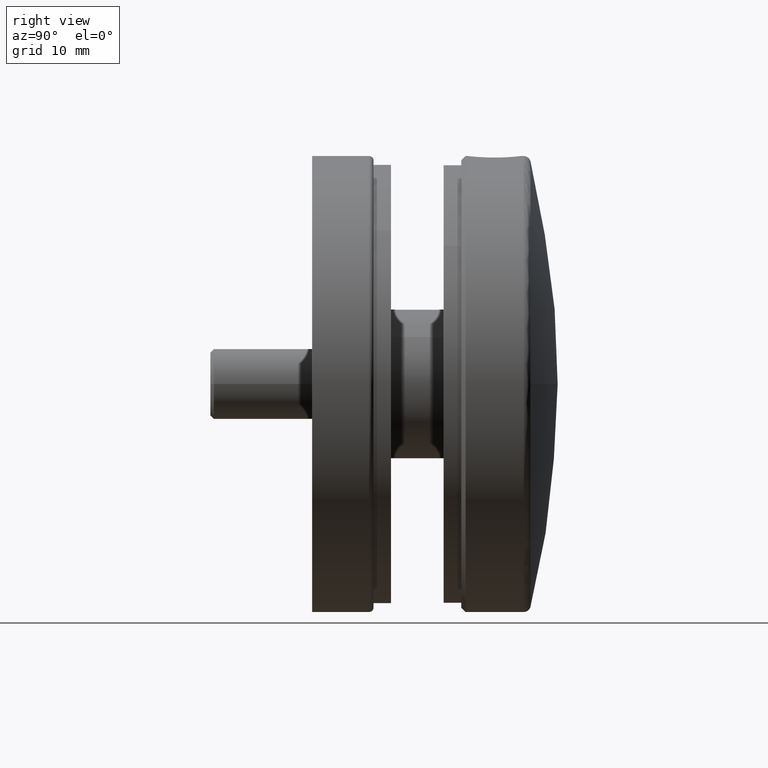
[diagram: clean part render]
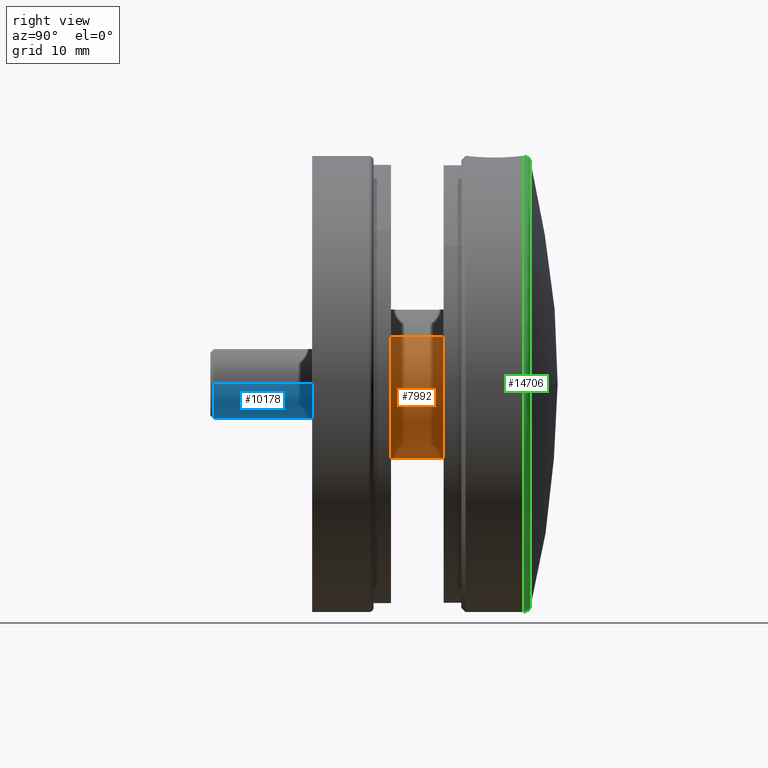
[diagram: same view with three faces highlighted in distinct colors, each labeled with its STEP entity id]
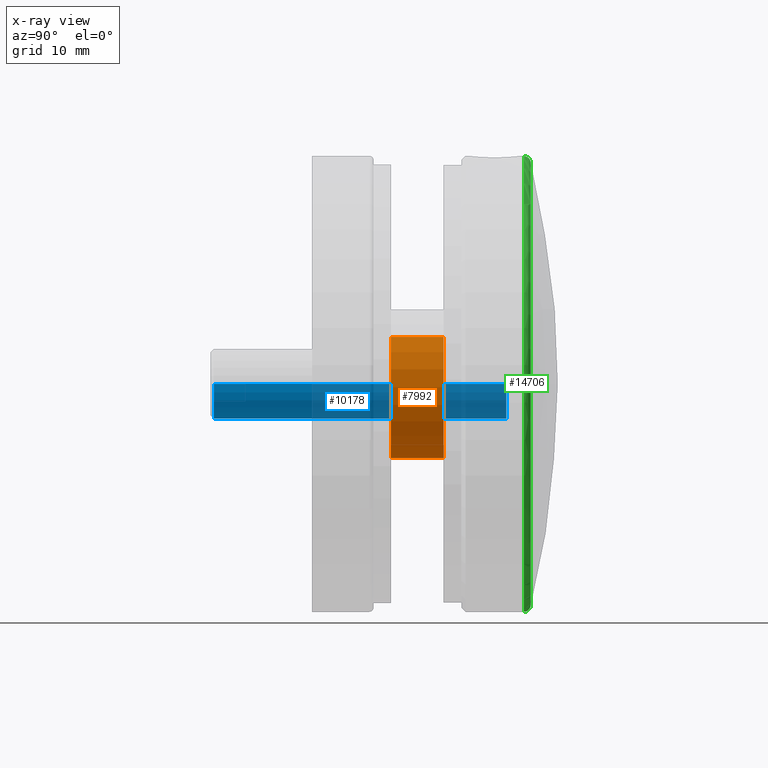
[diagram: x-ray of the same camera — body ghosted, the three highlighted faces saturated]
A machine part, right view with three faces highlighted in distinct colors.
The next image is the same camera in x-ray (body ghosted, the three faces saturated) — at least one of them is partly hidden behind the body in this view.
Their STEP definitions:

[orange] entity #7992 — the highlighted cylindrical surface (partial cylindrical patch) has radius 8.5 mm, axis along (0, 1, 0).
#12 = DIRECTION ( 'NONE',  ( 0.0000000000000000000, 0.0000000000000000000, -1.000000000000000000 ) ) ;
#76 = ORIENTED_EDGE ( 'NONE', *, *, #10896, .F. ) ;
#1007 = DIRECTION ( 'NONE',  ( 0.0000000000000000000, 1.000000000000000000, 0.0000000000000000000 ) ) ;
#1044 = VERTEX_POINT ( 'NONE', #6632 ) ;
#1069 = CARTESIAN_POINT ( 'NONE',  ( 0.0000000000000000000, 8.000000000000000000, 0.0000000000000000000 ) ) ;
#1495 = CARTESIAN_POINT ( 'NONE',  ( 0.0000000000000000000, 8.000000000000000000, -8.500000000000000000 ) ) ;
#2379 = VERTEX_POINT ( 'NONE', #14632 ) ;
#2534 = DIRECTION ( 'NONE',  ( -0.0000000000000000000, -1.000000000000000000, -0.0000000000000000000 ) ) ;
#2962 = CIRCLE ( 'NONE', #10165, 8.500000000000000000 ) ;
#3809 = EDGE_CURVE ( 'NONE', #2379, #6171, #14386, .T. ) ;
#4023 = ORIENTED_EDGE ( 'NONE', *, *, #4996, .F. ) ;
#4832 = LINE ( 'NONE', #1495, #13557 ) ;
#4996 = EDGE_CURVE ( 'NONE', #1044, #5094, #2962, .T. ) ;
#5094 = VERTEX_POINT ( 'NONE', #14796 ) ;
#5155 = CARTESIAN_POINT ( 'NONE',  ( 0.0000000000000000000, 2.000000000000000000, 0.0000000000000000000 ) ) ;
#5250 = LINE ( 'NONE', #5963, #12172 ) ;
#5963 = CARTESIAN_POINT ( 'NONE',  ( 1.040949779275250100E-015, 8.000000000000000000, 8.500000000000000000 ) ) ;
#6171 = VERTEX_POINT ( 'NONE', #8765 ) ;
#6632 = CARTESIAN_POINT ( 'NONE',  ( 1.040949779275250100E-015, 8.000000000000000000, 8.500000000000000000 ) ) ;
#7414 = DIRECTION ( 'NONE',  ( 0.0000000000000000000, 1.000000000000000000, 0.0000000000000000000 ) ) ;
#7420 = ORIENTED_EDGE ( 'NONE', *, *, #7903, .T. ) ;
#7903 = EDGE_CURVE ( 'NONE', #1044, #2379, #5250, .T. ) ;
#7992 = ADVANCED_FACE ( 'NONE', ( #12364 ), #14150, .T. ) ;
#8073 = DIRECTION ( 'NONE',  ( -0.0000000000000000000, -1.000000000000000000, -0.0000000000000000000 ) ) ;
#8714 = AXIS2_PLACEMENT_3D ( 'NONE', #5155, #7414, #8876 ) ;
#8765 = CARTESIAN_POINT ( 'NONE',  ( 0.0000000000000000000, 2.000000000000000000, -8.500000000000000000 ) ) ;
#8841 = DIRECTION ( 'NONE',  ( 0.0000000000000000000, 0.0000000000000000000, 1.000000000000000000 ) ) ;
#8876 = DIRECTION ( 'NONE',  ( 0.0000000000000000000, 0.0000000000000000000, 1.000000000000000000 ) ) ;
#8928 = AXIS2_PLACEMENT_3D ( 'NONE', #1069, #8073, #12 ) ;
#10165 = AXIS2_PLACEMENT_3D ( 'NONE', #12319, #1007, #8841 ) ;
#10896 = EDGE_CURVE ( 'NONE', #5094, #6171, #4832, .T. ) ;
#11988 = ORIENTED_EDGE ( 'NONE', *, *, #3809, .T. ) ;
#11994 = DIRECTION ( 'NONE',  ( -0.0000000000000000000, -1.000000000000000000, -0.0000000000000000000 ) ) ;
#12172 = VECTOR ( 'NONE', #2534, 1000.000000000000000 ) ;
#12319 = CARTESIAN_POINT ( 'NONE',  ( 0.0000000000000000000, 8.000000000000000000, 0.0000000000000000000 ) ) ;
#12364 = FACE_OUTER_BOUND ( 'NONE', #14602, .T. ) ;
#13557 = VECTOR ( 'NONE', #11994, 1000.000000000000000 ) ;
#14150 = CYLINDRICAL_SURFACE ( 'NONE', #8928, 8.500000000000000000 ) ;
#14386 = CIRCLE ( 'NONE', #8714, 8.500000000000000000 ) ;
#14602 = EDGE_LOOP ( 'NONE', ( #4023, #7420, #11988, #76 ) ) ;
#14632 = CARTESIAN_POINT ( 'NONE',  ( 1.040949779275250100E-015, 2.000000000000000000, 8.500000000000000000 ) ) ;
#14796 = CARTESIAN_POINT ( 'NONE',  ( 0.0000000000000000000, 8.000000000000000000, -8.500000000000000000 ) ) ;

[blue] entity #10178 — the highlighted cylindrical surface (edge-blend (fillet) strip) has radius 4 mm, axis along (0, -1, 0).
#48 = CARTESIAN_POINT ( 'NONE',  ( 0.0000000000000000000, 0.0000000000000000000, -33.75000000000000700 ) ) ;
#666 = CARTESIAN_POINT ( 'NONE',  ( -4.000000000000000000, 4.898587196589412800E-016, -0.4000000000000019700 ) ) ;
#1444 = AXIS2_PLACEMENT_3D ( 'NONE', #5676, #13632, #10207 ) ;
#1769 = CARTESIAN_POINT ( 'NONE',  ( 4.000000000000000000, 0.0000000000000000000, -0.4000000000000019700 ) ) ;
#1863 = CIRCLE ( 'NONE', #13261, 4.000000000000000000 ) ;
#3309 = CIRCLE ( 'NONE', #7684, 4.000000000000000000 ) ;
#3838 = DIRECTION ( 'NONE',  ( -0.0000000000000000000, -0.0000000000000000000, 1.000000000000000000 ) ) ;
#4315 = EDGE_CURVE ( 'NONE', #12017, #7064, #3309, .T. ) ;
#4455 = DIRECTION ( 'NONE',  ( 0.0000000000000000000, 0.0000000000000000000, -1.000000000000000000 ) ) ;
#4522 = EDGE_CURVE ( 'NONE', #6395, #7064, #11304, .T. ) ;
#4627 = VECTOR ( 'NONE', #13139, 1000.000000000000000 ) ;
#5150 = LINE ( 'NONE', #6303, #4627 ) ;
#5676 = CARTESIAN_POINT ( 'NONE',  ( 0.0000000000000000000, 0.0000000000000000000, 0.0000000000000000000 ) ) ;
#5762 = EDGE_CURVE ( 'NONE', #6395, #12865, #1863, .T. ) ;
#6267 = CYLINDRICAL_SURFACE ( 'NONE', #1444, 4.000000000000000000 ) ;
#6303 = CARTESIAN_POINT ( 'NONE',  ( 4.000000000000000000, 0.0000000000000000000, 0.0000000000000000000 ) ) ;
#6352 = CARTESIAN_POINT ( 'NONE',  ( 4.000000000000000000, 0.0000000000000000000, -33.75000000000000700 ) ) ;
#6395 = VERTEX_POINT ( 'NONE', #11778 ) ;
#7064 = VERTEX_POINT ( 'NONE', #666 ) ;
#7684 = AXIS2_PLACEMENT_3D ( 'NONE', #11398, #4455, #14728 ) ;
#7896 = VECTOR ( 'NONE', #3838, 1000.000000000000000 ) ;
#7904 = DIRECTION ( 'NONE',  ( -0.0000000000000000000, -0.0000000000000000000, 1.000000000000000000 ) ) ;
#10178 = ADVANCED_FACE ( 'NONE', ( #12683 ), #6267, .T. ) ;
#10207 = DIRECTION ( 'NONE',  ( 1.000000000000000000, 0.0000000000000000000, 0.0000000000000000000 ) ) ;
#10449 = ORIENTED_EDGE ( 'NONE', *, *, #4522, .F. ) ;
#11304 = LINE ( 'NONE', #13847, #7896 ) ;
#11398 = CARTESIAN_POINT ( 'NONE',  ( 0.0000000000000000000, 0.0000000000000000000, -0.4000000000000019700 ) ) ;
#11778 = CARTESIAN_POINT ( 'NONE',  ( -4.000000000000000000, 4.898587196589412800E-016, -33.75000000000000700 ) ) ;
#12017 = VERTEX_POINT ( 'NONE', #1769 ) ;
#12064 = ORIENTED_EDGE ( 'NONE', *, *, #4315, .T. ) ;
#12336 = DIRECTION ( 'NONE',  ( 1.000000000000000000, 0.0000000000000000000, 0.0000000000000000000 ) ) ;
#12683 = FACE_OUTER_BOUND ( 'NONE', #13489, .T. ) ;
#12865 = VERTEX_POINT ( 'NONE', #6352 ) ;
#13139 = DIRECTION ( 'NONE',  ( -0.0000000000000000000, -0.0000000000000000000, 1.000000000000000000 ) ) ;
#13261 = AXIS2_PLACEMENT_3D ( 'NONE', #48, #7904, #12336 ) ;
#13330 = EDGE_CURVE ( 'NONE', #12865, #12017, #5150, .T. ) ;
#13489 = EDGE_LOOP ( 'NONE', ( #10449, #13689, #13505, #12064 ) ) ;
#13505 = ORIENTED_EDGE ( 'NONE', *, *, #13330, .T. ) ;
#13632 = DIRECTION ( 'NONE',  ( -0.0000000000000000000, -0.0000000000000000000, 1.000000000000000000 ) ) ;
#13689 = ORIENTED_EDGE ( 'NONE', *, *, #5762, .T. ) ;
#13847 = CARTESIAN_POINT ( 'NONE',  ( -4.000000000000000000, 4.898587196589412800E-016, 0.0000000000000000000 ) ) ;
#14728 = DIRECTION ( 'NONE',  ( -1.000000000000000000, 0.0000000000000000000, 0.0000000000000000000 ) ) ;

[green] entity #14706 — the highlighted toroidal blend (fillet) surface has major radius 25.2 mm and minor (blend) radius 0.8 mm.
#24 = CIRCLE ( 'NONE', #14830, 0.7999999999999986000 ) ;
#53 = DIRECTION ( 'NONE',  ( 0.0000000000000000000, 0.0000000000000000000, -1.000000000000000000 ) ) ;
#664 = EDGE_CURVE ( 'NONE', #7021, #13294, #1218, .T. ) ;
#1212 = DIRECTION ( 'NONE',  ( 1.000000000000000000, 0.0000000000000000000, -1.224646799147353200E-016 ) ) ;
#1218 = CIRCLE ( 'NONE', #4711, 0.7999999999999986000 ) ;
#1312 = CARTESIAN_POINT ( 'NONE',  ( 26.00000000000000400, 7.903793675071546500, 0.0000000000000000000 ) ) ;
#1487 = CIRCLE ( 'NONE', #13367, 25.39223800896348100 ) ;
#2109 = ORIENTED_EDGE ( 'NONE', *, *, #14265, .F. ) ;
#2960 = DIRECTION ( 'NONE',  ( -0.0000000000000000000, -1.000000000000000000, -0.0000000000000000000 ) ) ;
#3471 = CARTESIAN_POINT ( 'NONE',  ( 26.00000000000000400, 7.127234245336927300, 25.19999999999999900 ) ) ;
#3662 = AXIS2_PLACEMENT_3D ( 'NONE', #12276, #13437, #6607 ) ;
#3691 = DIRECTION ( 'NONE',  ( 0.0000000000000000000, 1.000000000000000000, 0.0000000000000000000 ) ) ;
#3878 = VERTEX_POINT ( 'NONE', #4262 ) ;
#4059 = AXIS2_PLACEMENT_3D ( 'NONE', #6396, #2960, #11086 ) ;
#4262 = CARTESIAN_POINT ( 'NONE',  ( 26.00000000000000000, 7.903793675071546500, -25.39223800896348100 ) ) ;
#4417 = DIRECTION ( 'NONE',  ( 0.0000000000000000000, 0.0000000000000000000, 1.000000000000000000 ) ) ;
#4711 = AXIS2_PLACEMENT_3D ( 'NONE', #3471, #1212, #53 ) ;
#4780 = CIRCLE ( 'NONE', #13012, 25.39223800896348100 ) ;
#5351 = CIRCLE ( 'NONE', #3662, 26.00000000000000000 ) ;
#5402 = VERTEX_POINT ( 'NONE', #7333 ) ;
#5842 = TOROIDAL_SURFACE ( 'NONE', #4059, 25.19999999999999900, 0.8000000000000000400 ) ;
#6157 = CARTESIAN_POINT ( 'NONE',  ( 26.00000000000000400, 7.903793675071546500, 25.39223800896348100 ) ) ;
#6326 = CARTESIAN_POINT ( 'NONE',  ( 26.00000000000000400, 7.903793675071546500, 0.0000000000000000000 ) ) ;
#6396 = CARTESIAN_POINT ( 'NONE',  ( 26.00000000000000000, 7.127234245336927300, 0.0000000000000000000 ) ) ;
#6607 = DIRECTION ( 'NONE',  ( 0.0000000000000000000, 0.0000000000000000000, -1.000000000000000000 ) ) ;
#7021 = VERTEX_POINT ( 'NONE', #6157 ) ;
#7315 = VERTEX_POINT ( 'NONE', #13552 ) ;
#7333 = CARTESIAN_POINT ( 'NONE',  ( 26.00000000000000000, 7.127234245336927300, -26.00000000000000000 ) ) ;
#7407 = EDGE_CURVE ( 'NONE', #7315, #3878, #1487, .T. ) ;
#7443 = DIRECTION ( 'NONE',  ( 0.0000000000000000000, 0.0000000000000000000, -1.000000000000000000 ) ) ;
#7493 = ORIENTED_EDGE ( 'NONE', *, *, #664, .T. ) ;
#7712 = DIRECTION ( 'NONE',  ( -1.000000000000000000, 0.0000000000000000000, 0.0000000000000000000 ) ) ;
#8187 = EDGE_LOOP ( 'NONE', ( #2109, #7493, #9357, #14732, #11584 ) ) ;
#9139 = EDGE_CURVE ( 'NONE', #3878, #5402, #24, .T. ) ;
#9357 = ORIENTED_EDGE ( 'NONE', *, *, #11692, .F. ) ;
#10699 = CARTESIAN_POINT ( 'NONE',  ( 26.00000000000000400, 7.127234245336927300, 26.00000000000000000 ) ) ;
#11086 = DIRECTION ( 'NONE',  ( 0.0000000000000000000, 0.0000000000000000000, -1.000000000000000000 ) ) ;
#11584 = ORIENTED_EDGE ( 'NONE', *, *, #7407, .F. ) ;
#11692 = EDGE_CURVE ( 'NONE', #5402, #13294, #5351, .T. ) ;
#12276 = CARTESIAN_POINT ( 'NONE',  ( 26.00000000000000000, 7.127234245336927300, 0.0000000000000000000 ) ) ;
#12780 = FACE_OUTER_BOUND ( 'NONE', #8187, .T. ) ;
#12789 = DIRECTION ( 'NONE',  ( 0.0000000000000000000, 1.000000000000000000, 0.0000000000000000000 ) ) ;
#12928 = DIRECTION ( 'NONE',  ( 0.0000000000000000000, 0.0000000000000000000, -1.000000000000000000 ) ) ;
#13012 = AXIS2_PLACEMENT_3D ( 'NONE', #6326, #3691, #7443 ) ;
#13294 = VERTEX_POINT ( 'NONE', #10699 ) ;
#13367 = AXIS2_PLACEMENT_3D ( 'NONE', #1312, #12789, #12928 ) ;
#13437 = DIRECTION ( 'NONE',  ( -0.0000000000000000000, -1.000000000000000000, -0.0000000000000000000 ) ) ;
#13552 = CARTESIAN_POINT ( 'NONE',  ( 51.39223800896347400, 7.903793675071553600, -3.109652300086488700E-015 ) ) ;
#14265 = EDGE_CURVE ( 'NONE', #7021, #7315, #4780, .T. ) ;
#14706 = ADVANCED_FACE ( 'NONE', ( #12780 ), #5842, .T. ) ;
#14732 = ORIENTED_EDGE ( 'NONE', *, *, #9139, .F. ) ;
#14738 = CARTESIAN_POINT ( 'NONE',  ( 26.00000000000000000, 7.127234245336927300, -25.19999999999999900 ) ) ;
#14830 = AXIS2_PLACEMENT_3D ( 'NONE', #14738, #7712, #4417 ) ;